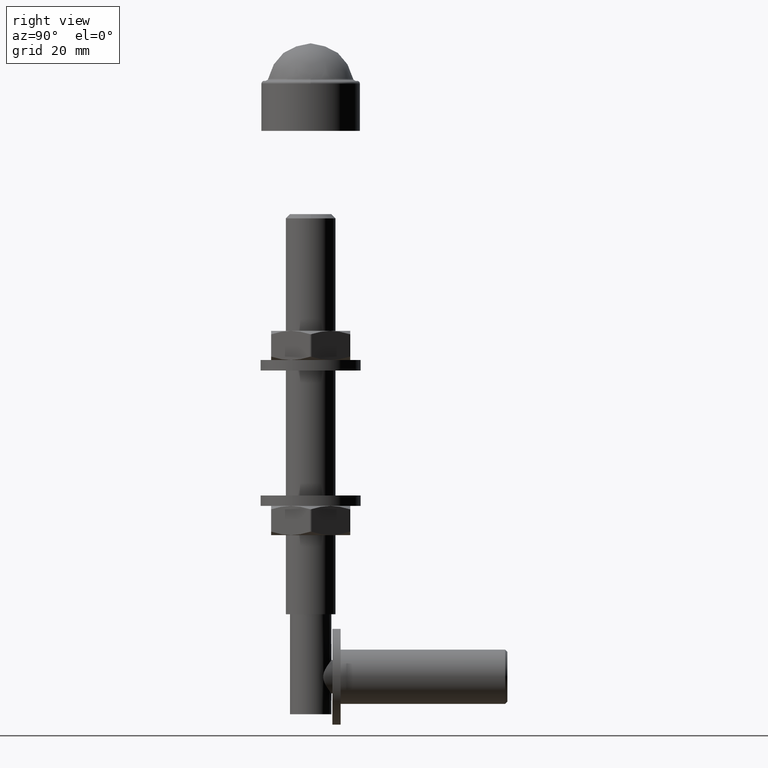
[diagram: clean part render]
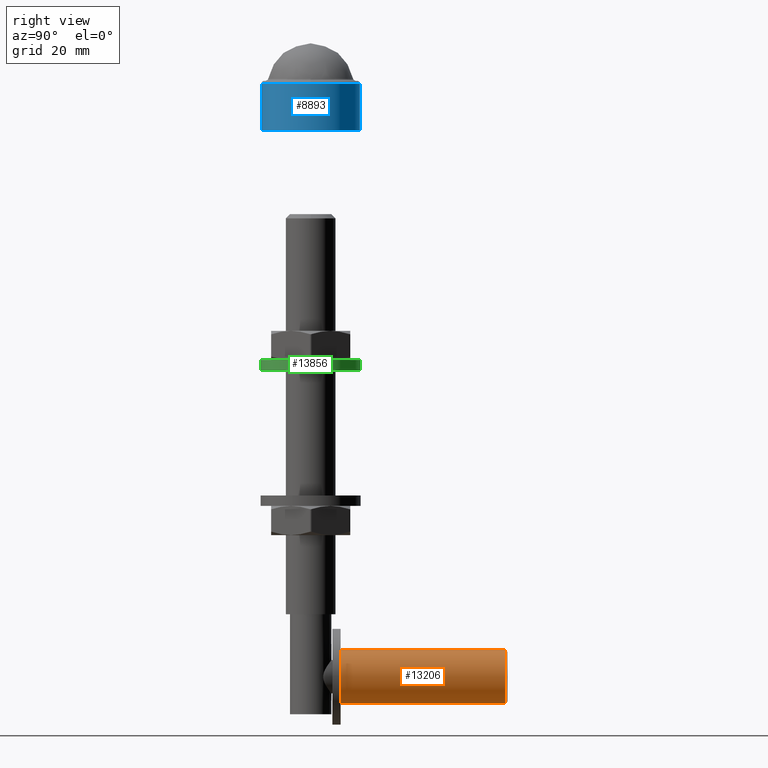
[diagram: same view with three faces highlighted in distinct colors, each labeled with its STEP entity id]
A machine part, right view with three faces highlighted in distinct colors.
Their STEP definitions:

[orange] entity #13206 — the highlighted cylindrical surface (bore or boss wall) has radius 6.5 mm, axis along (-0, -1, -0).
#1649 = CARTESIAN_POINT ( 'NONE',  ( 0.000000000000000000, 7.199999999999979750, -51.00000000000000711 ) ) ;
#2952 = EDGE_LOOP ( 'NONE', ( #6221 ) ) ;
#3463 = CIRCLE ( 'NONE', #6446, 6.500000000000012434 ) ;
#3545 = DIRECTION ( 'NONE',  ( -0.000000000000000000, -1.000000000000000000, -0.000000000000000000 ) ) ;
#4190 = CIRCLE ( 'NONE', #6119, 6.500000000000005329 ) ;
#4424 = ORIENTED_EDGE ( 'NONE', *, *, #12172, .T. ) ;
#4582 = DIRECTION ( 'NONE',  ( 0.000000000000000000, 0.000000000000000000, -1.000000000000000000 ) ) ;
#5009 = FACE_OUTER_BOUND ( 'NONE', #13224, .T. ) ;
#5112 = CARTESIAN_POINT ( 'NONE',  ( 0.000000000000000000, 46.69999999999996732, -44.50000000000000000 ) ) ;
#5816 = CARTESIAN_POINT ( 'NONE',  ( 0.000000000000000000, 0.000000000000000000, -51.00000000000000711 ) ) ;
#6119 = AXIS2_PLACEMENT_3D ( 'NONE', #6201, #3545, #12209 ) ;
#6201 = CARTESIAN_POINT ( 'NONE',  ( 0.000000000000000000, 46.69999999999996732, -51.00000000000000711 ) ) ;
#6221 = ORIENTED_EDGE ( 'NONE', *, *, #11171, .F. ) ;
#6446 = AXIS2_PLACEMENT_3D ( 'NONE', #1649, #8974, #14151 ) ;
#7076 = DIRECTION ( 'NONE',  ( -0.000000000000000000, -1.000000000000000000, -0.000000000000000000 ) ) ;
#8974 = DIRECTION ( 'NONE',  ( -0.000000000000000000, -1.000000000000000000, -0.000000000000000000 ) ) ;
#9660 = VERTEX_POINT ( 'NONE', #11210 ) ;
#10555 = CYLINDRICAL_SURFACE ( 'NONE', #15629, 6.500000000000005329 ) ;
#11171 = EDGE_CURVE ( 'NONE', #9660, #9660, #3463, .T. ) ;
#11210 = CARTESIAN_POINT ( 'NONE',  ( 0.000000000000000000, 7.199999999999979750, -57.50000000000001421 ) ) ;
#12172 = EDGE_CURVE ( 'NONE', #14611, #14611, #4190, .T. ) ;
#12209 = DIRECTION ( 'NONE',  ( 0.000000000000000000, 0.000000000000000000, 1.000000000000000000 ) ) ;
#13206 = ADVANCED_FACE ( 'NONE', ( #5009, #13807 ), #10555, .T. ) ;
#13224 = EDGE_LOOP ( 'NONE', ( #4424 ) ) ;
#13807 = FACE_OUTER_BOUND ( 'NONE', #2952, .T. ) ;
#14151 = DIRECTION ( 'NONE',  ( 0.000000000000000000, 0.000000000000000000, -1.000000000000000000 ) ) ;
#14611 = VERTEX_POINT ( 'NONE', #5112 ) ;
#15629 = AXIS2_PLACEMENT_3D ( 'NONE', #5816, #7076, #4582 ) ;

[blue] entity #8893 — the highlighted cylindrical surface (bore or boss wall) has radius 11.9 mm, axis along (-0, -0, 1).
#240 = AXIS2_PLACEMENT_3D ( 'NONE', #13727, #11103, #4964 ) ;
#701 = VERTEX_POINT ( 'NONE', #11427 ) ;
#1419 = EDGE_LOOP ( 'NONE', ( #3551 ) ) ;
#1644 = VERTEX_POINT ( 'NONE', #2662 ) ;
#2662 = CARTESIAN_POINT ( 'NONE',  ( 11.90000000000000036, 11.30000000000000071, 0.000000000000000000 ) ) ;
#2715 = CYLINDRICAL_SURFACE ( 'NONE', #12559, 11.90000000000000036 ) ;
#2841 = DIRECTION ( 'NONE',  ( -1.000000000000000000, -1.444893032729974187E-24, 0.000000000000000000 ) ) ;
#2894 = CARTESIAN_POINT ( 'NONE',  ( -3.034275368732945463E-23, 21.00000000000000000, 0.000000000000000000 ) ) ;
#3057 = CIRCLE ( 'NONE', #8091, 11.90000000000000036 ) ;
#3087 = EDGE_CURVE ( 'NONE', #1644, #1644, #15238, .T. ) ;
#3551 = ORIENTED_EDGE ( 'NONE', *, *, #3087, .T. ) ;
#4230 = DIRECTION ( 'NONE',  ( -1.444893032729974187E-24, 1.000000000000000000, -0.000000000000000000 ) ) ;
#4964 = DIRECTION ( 'NONE',  ( 1.000000000000000000, 0.000000000000000000, 0.000000000000000000 ) ) ;
#6496 = DIRECTION ( 'NONE',  ( -1.444893032729974187E-24, 1.000000000000000000, -0.000000000000000000 ) ) ;
#7994 = ORIENTED_EDGE ( 'NONE', *, *, #11811, .T. ) ;
#8091 = AXIS2_PLACEMENT_3D ( 'NONE', #11387, #6496, #2841 ) ;
#8509 = EDGE_LOOP ( 'NONE', ( #7994 ) ) ;
#8893 = ADVANCED_FACE ( 'NONE', ( #11286, #15483 ), #2715, .T. ) ;
#11103 = DIRECTION ( 'NONE',  ( 1.444893032729974187E-24, -1.000000000000000000, 0.000000000000000000 ) ) ;
#11286 = FACE_OUTER_BOUND ( 'NONE', #1419, .T. ) ;
#11387 = CARTESIAN_POINT ( 'NONE',  ( 5.739718509874450723E-39, 0.000000000000000000, 0.000000000000000000 ) ) ;
#11427 = CARTESIAN_POINT ( 'NONE',  ( -11.90000000000000036, -1.719422708948669389E-23, 0.000000000000000000 ) ) ;
#11436 = DIRECTION ( 'NONE',  ( -1.000000000000000000, 0.000000000000000000, 0.000000000000000000 ) ) ;
#11811 = EDGE_CURVE ( 'NONE', #701, #701, #3057, .T. ) ;
#12559 = AXIS2_PLACEMENT_3D ( 'NONE', #2894, #4230, #11436 ) ;
#13727 = CARTESIAN_POINT ( 'NONE',  ( -1.632729126984870402E-23, 11.30000000000000071, 0.000000000000000000 ) ) ;
#15238 = CIRCLE ( 'NONE', #240, 11.90000000000000036 ) ;
#15483 = FACE_OUTER_BOUND ( 'NONE', #8509, .T. ) ;

[green] entity #13856 — the highlighted cylindrical surface (bore or boss wall) has radius 12 mm, axis along (0, -0, 1).
#93 = CARTESIAN_POINT ( 'NONE',  ( 0.000000000000000000, 0.000000000000000000, 0.000000000000000000 ) ) ;
#657 = AXIS2_PLACEMENT_3D ( 'NONE', #6292, #2485, #13430 ) ;
#850 = EDGE_CURVE ( 'NONE', #14988, #14988, #13070, .T. ) ;
#852 = ORIENTED_EDGE ( 'NONE', *, *, #850, .F. ) ;
#2257 = FACE_OUTER_BOUND ( 'NONE', #9844, .T. ) ;
#2485 = DIRECTION ( 'NONE',  ( 0.000000000000000000, 1.000000000000000000, 0.000000000000000000 ) ) ;
#2823 = CARTESIAN_POINT ( 'NONE',  ( 0.000000000000000000, 2.500000000000000000, 0.000000000000000000 ) ) ;
#3565 = VERTEX_POINT ( 'NONE', #8924 ) ;
#3829 = ORIENTED_EDGE ( 'NONE', *, *, #5477, .T. ) ;
#3901 = CARTESIAN_POINT ( 'NONE',  ( 0.000000000000000000, 2.500000000000000000, 12.00000000000000178 ) ) ;
#3943 = CIRCLE ( 'NONE', #10032, 12.00000000000000178 ) ;
#4166 = DIRECTION ( 'NONE',  ( -0.000000000000000000, -1.000000000000000000, -0.000000000000000000 ) ) ;
#5477 = EDGE_CURVE ( 'NONE', #3565, #3565, #3943, .T. ) ;
#6292 = CARTESIAN_POINT ( 'NONE',  ( 0.000000000000000000, 2.500000000000000000, 0.000000000000000000 ) ) ;
#7336 = DIRECTION ( 'NONE',  ( 0.000000000000000000, 0.000000000000000000, 1.000000000000000000 ) ) ;
#8924 = CARTESIAN_POINT ( 'NONE',  ( 0.000000000000000000, 0.000000000000000000, 12.00000000000000178 ) ) ;
#9844 = EDGE_LOOP ( 'NONE', ( #3829 ) ) ;
#9879 = FACE_OUTER_BOUND ( 'NONE', #10247, .T. ) ;
#10032 = AXIS2_PLACEMENT_3D ( 'NONE', #93, #13440, #7336 ) ;
#10247 = EDGE_LOOP ( 'NONE', ( #852 ) ) ;
#12059 = AXIS2_PLACEMENT_3D ( 'NONE', #2823, #4166, #12712 ) ;
#12712 = DIRECTION ( 'NONE',  ( 0.000000000000000000, 0.000000000000000000, -1.000000000000000000 ) ) ;
#13070 = CIRCLE ( 'NONE', #657, 12.00000000000000178 ) ;
#13430 = DIRECTION ( 'NONE',  ( 0.000000000000000000, 0.000000000000000000, 1.000000000000000000 ) ) ;
#13440 = DIRECTION ( 'NONE',  ( 0.000000000000000000, 1.000000000000000000, 0.000000000000000000 ) ) ;
#13856 = ADVANCED_FACE ( 'NONE', ( #9879, #2257 ), #15613, .T. ) ;
#14988 = VERTEX_POINT ( 'NONE', #3901 ) ;
#15613 = CYLINDRICAL_SURFACE ( 'NONE', #12059, 12.00000000000000178 ) ;